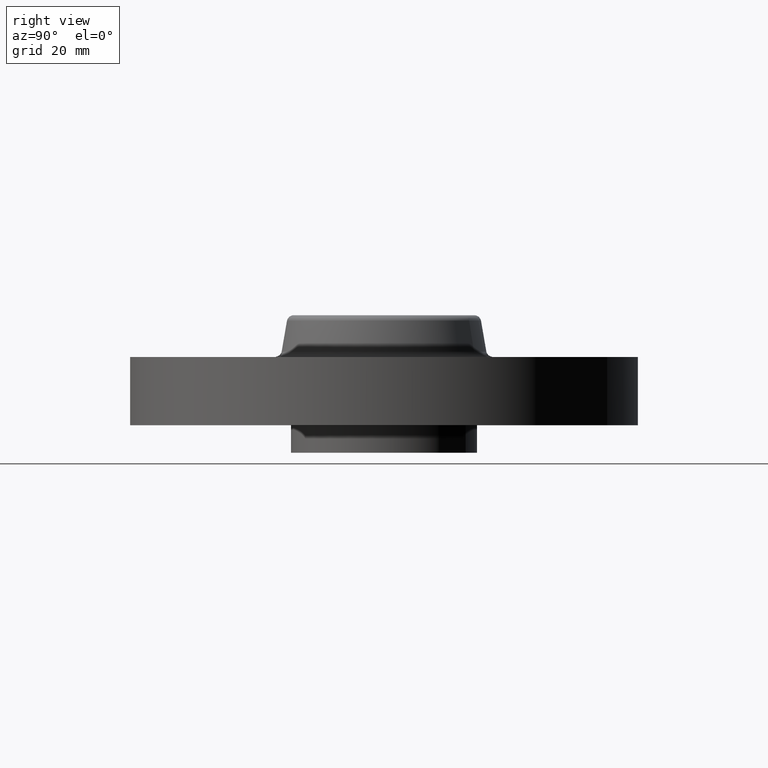
[diagram: clean part render]
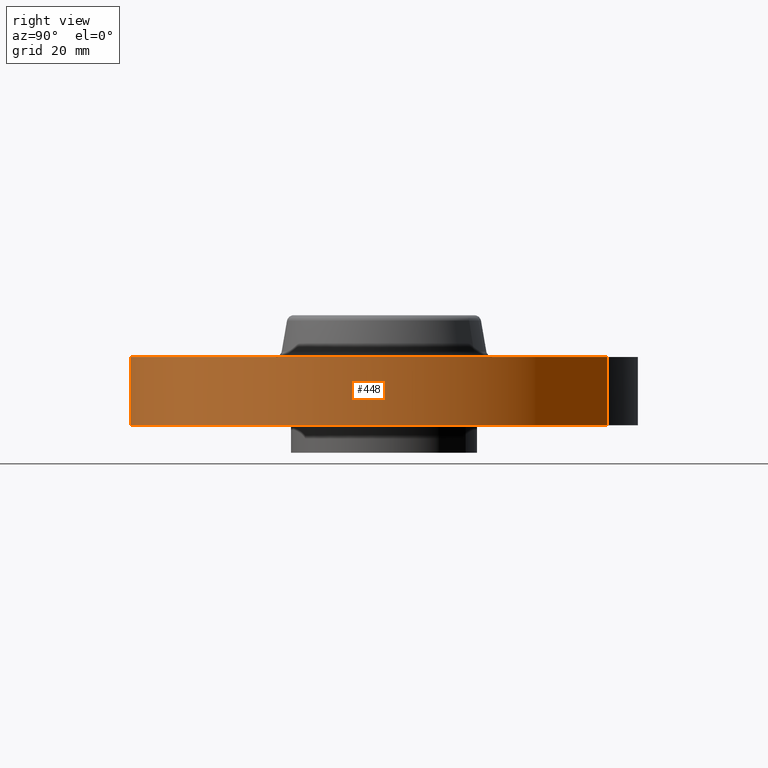
[diagram: same view with one face highlighted and labeled with its STEP entity id]
A machine part, right view. The second image highlights one B-rep face of the part: STEP entity #448.
In plain terms, the highlighted cylindrical surface (partial cylindrical patch) has radius 58.674 mm, axis along (0, 0, -1).
Its self-contained STEP definition (entity closure, byte-faithful):
#395=AXIS2_PLACEMENT_3D('Cylinder Axis2P3D',#392,#393,#394) ;
#434=AXIS2_PLACEMENT_3D('Circle Axis2P3D',#432,#433,$) ;
#439=AXIS2_PLACEMENT_3D('Circle Axis2P3D',#437,#438,$) ;
#392=CARTESIAN_POINT('Axis2P3D Location',(0.,0.,0.375000000002)) ;
#401=CARTESIAN_POINT('Vertex',(-1.10747299418,-2.02721571797,2.79741234551E-016)) ;
#403=CARTESIAN_POINT('Vertex',(1.10747299418,2.02721571797,2.79741234551E-016)) ;
#406=CARTESIAN_POINT('Line Origine',(-1.10747299418,-2.02721571797,0.310000000001)) ;
#410=CARTESIAN_POINT('Vertex',(-1.10747299418,-2.02721571797,0.620000000002)) ;
#417=CARTESIAN_POINT('Vertex',(1.10747299418,2.02721571797,0.620000000002)) ;
#420=CARTESIAN_POINT('Line Origine',(1.10747299418,2.02721571797,0.310000000001)) ;
#432=CARTESIAN_POINT('Axis2P3D Location',(0.,0.,2.79741234551E-016)) ;
#437=CARTESIAN_POINT('Axis2P3D Location',(0.,0.,0.620000000002)) ;
#393=DIRECTION('Axis2P3D Direction',(0.,0.,-0.0393700787402)) ;
#394=DIRECTION('Axis2P3D XDirection',(0.0188750212049,0.0345504945626,0.)) ;
#407=DIRECTION('Vector Direction',(0.,0.,-0.0393700787402)) ;
#421=DIRECTION('Vector Direction',(0.,0.,-0.0393700787402)) ;
#433=DIRECTION('Axis2P3D Direction',(0.,0.,-0.0393700787402)) ;
#438=DIRECTION('Axis2P3D Direction',(0.,0.,-0.0393700787402)) ;
#408=VECTOR('Line Direction',#407,0.0393700787402) ;
#422=VECTOR('Line Direction',#421,0.0393700787402) ;
#443=ORIENTED_EDGE('',*,*,#436,.F.) ;
#444=ORIENTED_EDGE('',*,*,#424,.T.) ;
#445=ORIENTED_EDGE('',*,*,#441,.T.) ;
#446=ORIENTED_EDGE('',*,*,#412,.F.) ;
#448=ADVANCED_FACE('PartBody',(#447),#396,.T.) ;
#435=CIRCLE('generated circle',#434,2.31000000001) ;
#440=CIRCLE('generated circle',#439,2.31000000001) ;
#396=CYLINDRICAL_SURFACE('generated cylinder',#395,2.31000000001) ;
#412=EDGE_CURVE('',#402,#411,#409,.F.) ;
#424=EDGE_CURVE('',#404,#418,#423,.F.) ;
#436=EDGE_CURVE('',#404,#402,#435,.T.) ;
#441=EDGE_CURVE('',#418,#411,#440,.T.) ;
#442=EDGE_LOOP('',(#443,#444,#445,#446)) ;
#447=FACE_OUTER_BOUND('',#442,.T.) ;
#409=LINE('Line',#406,#408) ;
#423=LINE('Line',#420,#422) ;
#402=VERTEX_POINT('',#401) ;
#404=VERTEX_POINT('',#403) ;
#411=VERTEX_POINT('',#410) ;
#418=VERTEX_POINT('',#417) ;